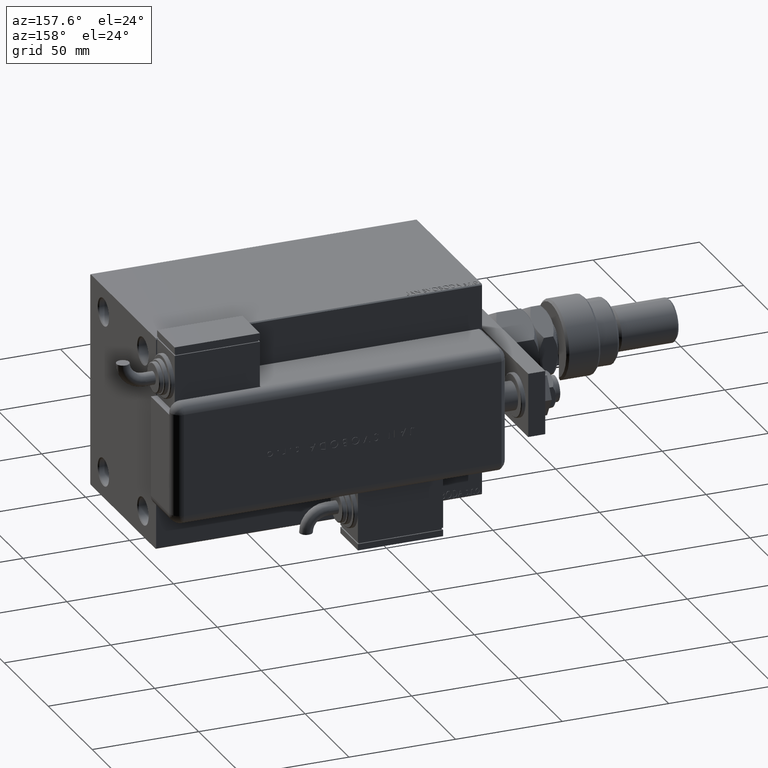
[diagram: clean part render]
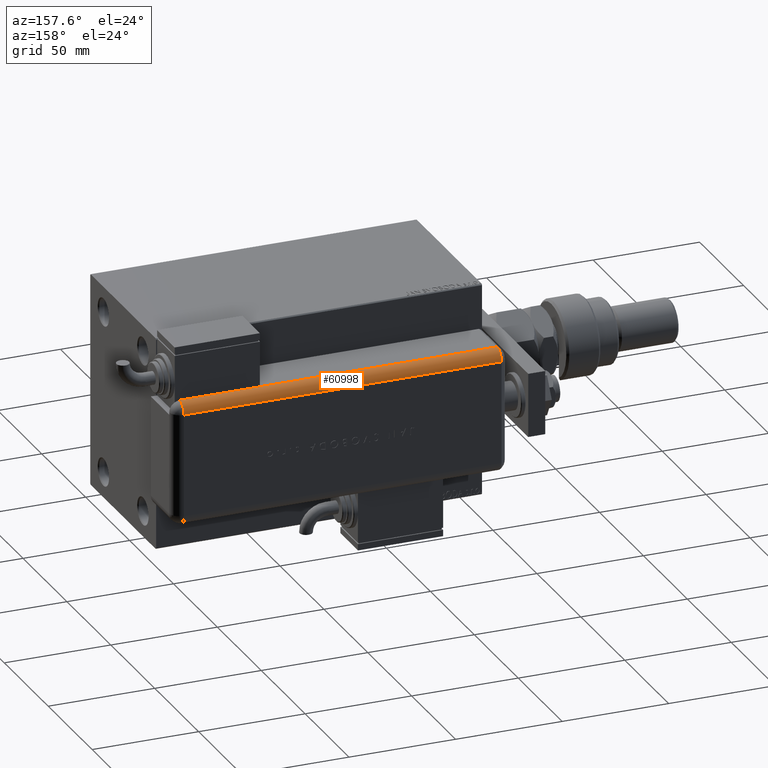
[diagram: same view with one face highlighted and labeled with its STEP entity id]
A machine part, auxiliary view. The second image highlights one B-rep face of the part: STEP entity #60998.
In plain terms, the highlighted cylindrical surface (edge-blend (fillet) strip) has radius 5 mm, axis along (1, -0, -0).
Its self-contained STEP definition (entity closure, byte-faithful):
#1288 = AXIS2_PLACEMENT_3D ( 'NONE', #21794, #13104, #18494 ) ;
#1854 = VERTEX_POINT ( 'NONE', #15724 ) ;
#2023 = ORIENTED_EDGE ( 'NONE', *, *, #25753, .F. ) ;
#4258 = CARTESIAN_POINT ( 'NONE',  ( 28.99999999999999645, 20.79999999999998295, 43.00000000000000000 ) ) ;
#4585 = CYLINDRICAL_SURFACE ( 'NONE', #21060, 5.000000000000000888 ) ;
#6823 = VECTOR ( 'NONE', #40587, 1000.000000000000000 ) ;
#12203 = EDGE_CURVE ( 'NONE', #1854, #50753, #45645, .T. ) ;
#13104 = DIRECTION ( 'NONE',  ( -0.000000000000000000, -0.000000000000000000, 1.000000000000000000 ) ) ;
#13355 = CIRCLE ( 'NONE', #18440, 5.000000000000000888 ) ;
#13519 = DIRECTION ( 'NONE',  ( -1.000000000000000000, 0.000000000000000000, 0.000000000000000000 ) ) ;
#14406 = VERTEX_POINT ( 'NONE', #32400 ) ;
#15724 = CARTESIAN_POINT ( 'NONE',  ( 28.99599839871871154, 21.00000000000000000, 5.000000000000004441 ) ) ;
#15917 = EDGE_CURVE ( 'NONE', #35493, #14406, #28683, .T. ) ;
#16708 = DIRECTION ( 'NONE',  ( -0.000000000000000000, 0.000000000000000000, -1.000000000000000000 ) ) ;
#18322 = AXIS2_PLACEMENT_3D ( 'NONE', #62785, #49055, #29896 ) ;
#18440 = AXIS2_PLACEMENT_3D ( 'NONE', #50839, #16708, #25635 ) ;
#18494 = DIRECTION ( 'NONE',  ( -1.000000000000000000, 0.000000000000000000, 0.000000000000000000 ) ) ;
#18506 = ORIENTED_EDGE ( 'NONE', *, *, #15917, .F. ) ;
#18564 = CIRCLE ( 'NONE', #1288, 5.000000000000000888 ) ;
#19193 = ORIENTED_EDGE ( 'NONE', *, *, #44374, .F. ) ;
#21060 = AXIS2_PLACEMENT_3D ( 'NONE', #58187, #28809, #13519 ) ;
#21794 = CARTESIAN_POINT ( 'NONE',  ( 23.99999999999999289, 20.79999999999998295, 5.000000000000004441 ) ) ;
#23320 = ORIENTED_EDGE ( 'NONE', *, *, #29216, .T. ) ;
#23894 = DIRECTION ( 'NONE',  ( -0.000000000000000000, -0.000000000000000000, 1.000000000000000000 ) ) ;
#23956 = CARTESIAN_POINT ( 'NONE',  ( 23.99999999999999289, 25.79999999999998295, 5.000000000000004441 ) ) ;
#25635 = DIRECTION ( 'NONE',  ( 1.000000000000000000, -6.383782391594648845E-14, 0.000000000000000000 ) ) ;
#25753 = EDGE_CURVE ( 'NONE', #50753, #35493, #13355, .T. ) ;
#28683 = LINE ( 'NONE', #62834, #40129 ) ;
#28803 = VECTOR ( 'NONE', #55554, 1000.000000000000000 ) ;
#28809 = DIRECTION ( 'NONE',  ( 0.000000000000000000, 0.000000000000000000, -1.000000000000000000 ) ) ;
#29216 = EDGE_CURVE ( 'NONE', #1854, #57957, #18564, .T. ) ;
#29896 = DIRECTION ( 'NONE',  ( -1.000000000000000000, 0.000000000000000000, 0.000000000000000000 ) ) ;
#32400 = CARTESIAN_POINT ( 'NONE',  ( 28.99999999999999645, 20.79999999999998295, 154.0000000000000000 ) ) ;
#35480 = LINE ( 'NONE', #46003, #6823 ) ;
#35493 = VERTEX_POINT ( 'NONE', #4258 ) ;
#39618 = CARTESIAN_POINT ( 'NONE',  ( 23.99999999999999289, 25.79999999999998295, 154.0000000000000000 ) ) ;
#40129 = VECTOR ( 'NONE', #23894, 1000.000000000000000 ) ;
#40587 = DIRECTION ( 'NONE',  ( 0.000000000000000000, 0.000000000000000000, -1.000000000000000000 ) ) ;
#41495 = CARTESIAN_POINT ( 'NONE',  ( 28.99599839871871154, 20.99999999999997868, 154.0000000000000000 ) ) ;
#43678 = ORIENTED_EDGE ( 'NONE', *, *, #50678, .F. ) ;
#44374 = EDGE_CURVE ( 'NONE', #48791, #57957, #35480, .T. ) ;
#45645 = LINE ( 'NONE', #41495, #28803 ) ;
#45828 = CIRCLE ( 'NONE', #18322, 5.000000000000000888 ) ;
#46003 = CARTESIAN_POINT ( 'NONE',  ( 23.99999999999999289, 25.79999999999998295, 154.0000000000000000 ) ) ;
#48791 = VERTEX_POINT ( 'NONE', #39618 ) ;
#49055 = DIRECTION ( 'NONE',  ( -0.000000000000000000, -0.000000000000000000, 1.000000000000000000 ) ) ;
#50289 = CARTESIAN_POINT ( 'NONE',  ( 28.99599839871871154, 20.99999999999999289, 43.00000000000000000 ) ) ;
#50678 = EDGE_CURVE ( 'NONE', #14406, #48791, #45828, .T. ) ;
#50753 = VERTEX_POINT ( 'NONE', #50289 ) ;
#50839 = CARTESIAN_POINT ( 'NONE',  ( 23.99999999999999289, 20.79999999999998295, 43.00000000000000000 ) ) ;
#53978 = EDGE_LOOP ( 'NONE', ( #2023, #60414, #23320, #19193, #43678, #18506 ) ) ;
#55554 = DIRECTION ( 'NONE',  ( -0.000000000000000000, -0.000000000000000000, 1.000000000000000000 ) ) ;
#57545 = FACE_OUTER_BOUND ( 'NONE', #53978, .T. ) ;
#57957 = VERTEX_POINT ( 'NONE', #23956 ) ;
#58187 = CARTESIAN_POINT ( 'NONE',  ( 23.99999999999999289, 20.79999999999998295, 154.0000000000000000 ) ) ;
#60414 = ORIENTED_EDGE ( 'NONE', *, *, #12203, .F. ) ;
#60998 = ADVANCED_FACE ( 'NONE', ( #57545 ), #4585, .T. ) ;
#62785 = CARTESIAN_POINT ( 'NONE',  ( 23.99999999999999289, 20.79999999999998295, 154.0000000000000000 ) ) ;
#62834 = CARTESIAN_POINT ( 'NONE',  ( 28.99999999999999645, 20.79999999999998295, 154.0000000000000000 ) ) ;